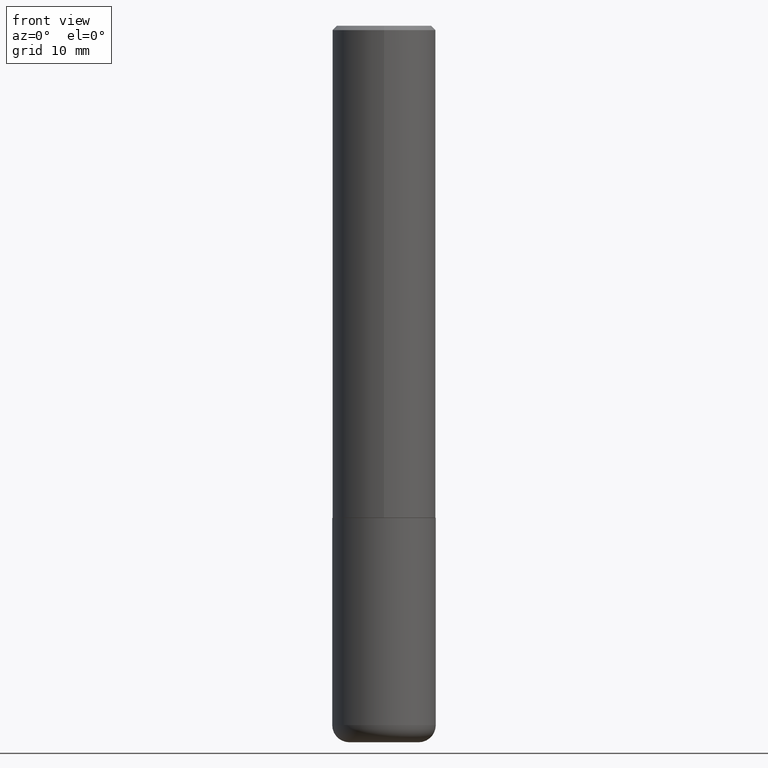
[diagram: clean part render]
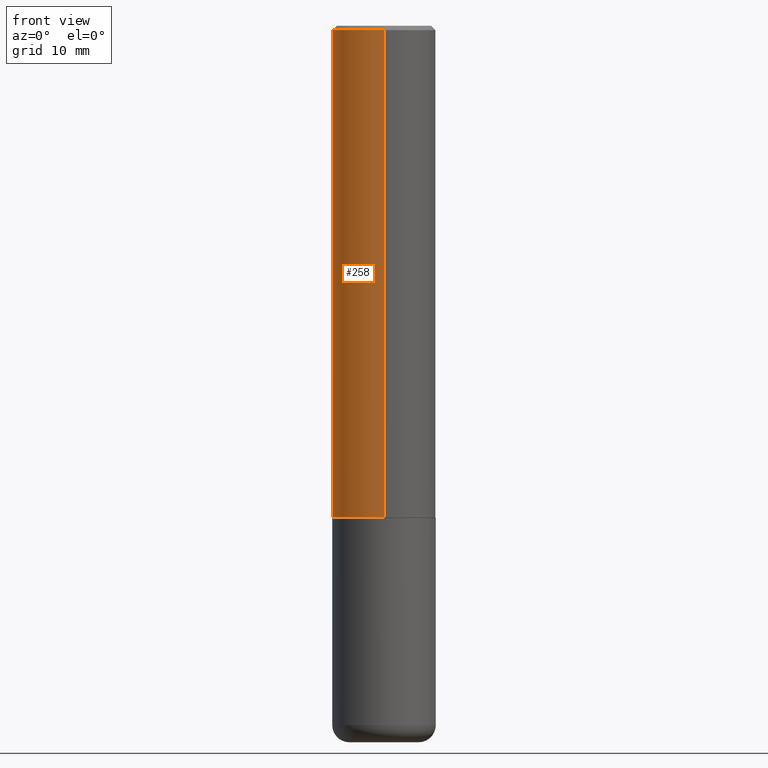
[diagram: same view with one face highlighted and labeled with its STEP entity id]
A machine part, front view. The second image highlights one B-rep face of the part: STEP entity #258.
In plain terms, the highlighted cylindrical surface (partial cylindrical patch) has radius 5.9995 mm, axis along (-0, 0, 1).
Its self-contained STEP definition (entity closure, byte-faithful):
#7 = CARTESIAN_POINT ( 'NONE',  ( 1.678301941865357577E-15, 0.2362000000000001598, -8.242244922156373274E-16 ) ) ;
#12 = CARTESIAN_POINT ( 'NONE',  ( -1.649375784469497117E-15, -0.2362000000000001598, 8.242244922156373274E-16 ) ) ;
#17 = DIRECTION ( 'NONE',  ( -2.446838791383407035E-29, 3.489519442064507417E-15, 1.000000000000000000 ) ) ;
#26 = CARTESIAN_POINT ( 'NONE',  ( 0.000000000000000000, 0.000000000000000000, 0.000000000000000000 ) ) ;
#95 = ORIENTED_EDGE ( 'NONE', *, *, #352, .T. ) ;
#110 = CARTESIAN_POINT ( 'NONE',  ( 4.893677582766832883E-31, -6.979038884129041064E-17, -0.02000000000000007674 ) ) ;
#112 = VECTOR ( 'NONE', #299, 39.37007874015748143 ) ;
#118 = CIRCLE ( 'NONE', #403, 0.2362000000000002986 ) ;
#122 = EDGE_LOOP ( 'NONE', ( #385, #162, #95, #232 ) ) ;
#123 = CARTESIAN_POINT ( 'NONE',  ( 1.649375784469496722E-15, 0.2361999999999999655, -0.02000000000000090247 ) ) ;
#129 = VERTEX_POINT ( 'NONE', #166 ) ;
#141 = VECTOR ( 'NONE', #415, 39.37007874015748143 ) ;
#142 = EDGE_CURVE ( 'NONE', #182, #321, #185, .T. ) ;
#162 = ORIENTED_EDGE ( 'NONE', *, *, #183, .T. ) ;
#166 = CARTESIAN_POINT ( 'NONE',  ( -1.649375784469443277E-15, -0.2362000000000081257, -2.243099999999999206 ) ) ;
#181 = CYLINDRICAL_SURFACE ( 'NONE', #410, 0.2362000000000001598 ) ;
#182 = VERTEX_POINT ( 'NONE', #123 ) ;
#183 = EDGE_CURVE ( 'NONE', #209, #129, #118, .T. ) ;
#185 = CIRCLE ( 'NONE', #400, 0.2362000000000000210 ) ;
#189 = CARTESIAN_POINT ( 'NONE',  ( 1.678301941865385779E-15, 0.2361999999999924715, -2.243100000000000982 ) ) ;
#193 = EDGE_CURVE ( 'NONE', #209, #182, #363, .T. ) ;
#209 = VERTEX_POINT ( 'NONE', #189 ) ;
#214 = DIRECTION ( 'NONE',  ( -6.982962677686265922E-15, -1.000000000000000000, 3.489519442064507812E-15 ) ) ;
#222 = DIRECTION ( 'NONE',  ( -2.446838791383407035E-29, 3.489519442064507417E-15, 1.000000000000000000 ) ) ;
#232 = ORIENTED_EDGE ( 'NONE', *, *, #142, .F. ) ;
#245 = FACE_OUTER_BOUND ( 'NONE', #122, .T. ) ;
#258 = ADVANCED_FACE ( 'NONE', ( #245 ), #181, .T. ) ;
#284 = CARTESIAN_POINT ( 'NONE',  ( 5.488504092952120537E-29, -7.827341060494897123E-15, -2.243100000000000094 ) ) ;
#293 = DIRECTION ( 'NONE',  ( -6.982962677686265922E-15, -1.000000000000000000, 3.469747663417772663E-15 ) ) ;
#299 = DIRECTION ( 'NONE',  ( -2.446838791383407035E-29, 3.489519442064507417E-15, 1.000000000000000000 ) ) ;
#321 = VERTEX_POINT ( 'NONE', #347 ) ;
#347 = CARTESIAN_POINT ( 'NONE',  ( -1.620449627073635276E-15, -0.2362000000000001043, -0.01999999999999925449 ) ) ;
#350 = DIRECTION ( 'NONE',  ( -6.982962677686265922E-15, -1.000000000000000000, 3.487819265831411350E-15 ) ) ;
#352 = EDGE_CURVE ( 'NONE', #129, #321, #367, .T. ) ;
#363 = LINE ( 'NONE', #7, #141 ) ;
#367 = LINE ( 'NONE', #12, #112 ) ;
#384 = DIRECTION ( 'NONE',  ( -2.446838791383407035E-29, 3.489519442064507417E-15, 1.000000000000000000 ) ) ;
#385 = ORIENTED_EDGE ( 'NONE', *, *, #193, .F. ) ;
#400 = AXIS2_PLACEMENT_3D ( 'NONE', #110, #17, #350 ) ;
#403 = AXIS2_PLACEMENT_3D ( 'NONE', #284, #222, #293 ) ;
#410 = AXIS2_PLACEMENT_3D ( 'NONE', #26, #384, #214 ) ;
#415 = DIRECTION ( 'NONE',  ( -2.446838791383407035E-29, 3.489519442064507417E-15, 1.000000000000000000 ) ) ;